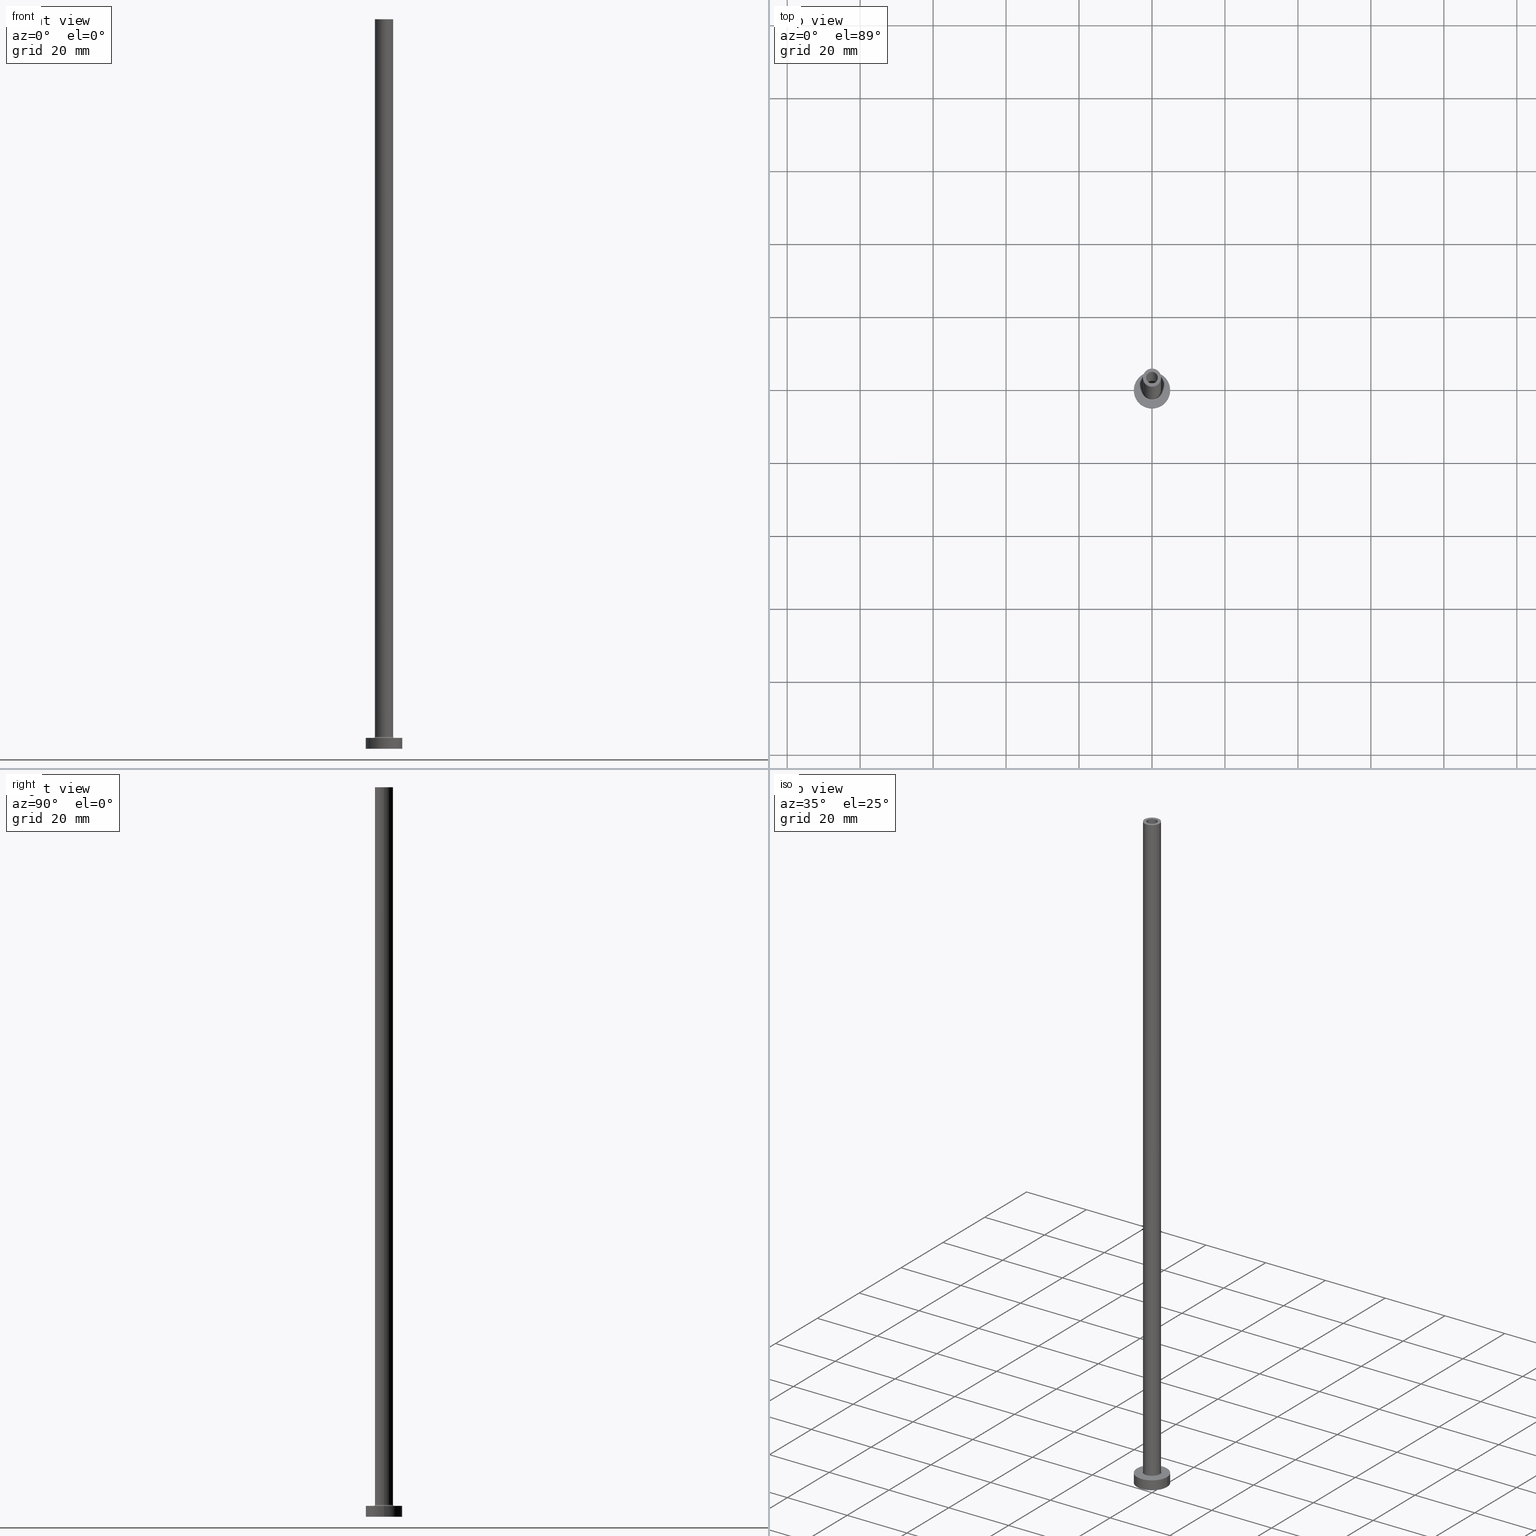
[diagram: canonical four-view strip — front | top / right | iso, engineering-drawing reading convention]
A machine part, canonical four-view strip (front | top / right | iso — engineering-drawing reading convention). The complete STEP part file that produces these views, byte-faithful:
ISO-10303-21;
HEADER;
FILE_DESCRIPTION (( 'STEP AP203' ),
    '1' );
FILE_NAME ('f123.STEP',
    '2023-02-13T17:56:43',
    ( '' ),
    ( '' ),
    'SwSTEP 2.0',
    'SolidWorks 2019',
    '' );
FILE_SCHEMA (( 'CONFIG_CONTROL_DESIGN' ));
ENDSEC;

DATA;
#1 = DIRECTION ( 'NONE',  ( -0.000000000000000000, -0.000000000000000000, -1.000000000000000000 ) ) ;
#2 = AXIS2_PLACEMENT_3D ( 'NONE', #81, #292, #219 ) ;
#3 = PLANE ( 'NONE',  #169 ) ;
#4 = CLOSED_SHELL ( 'NONE', ( #215, #133, #427, #342, #326, #454, #371, #419, #301, #244, #283, #117, #319, #413 ) ) ;
#5 = LINE ( 'NONE', #148, #246 ) ;
#6 = DIRECTION ( 'NONE',  ( 0.000000000000000000, 0.000000000000000000, 1.000000000000000000 ) ) ;
#7 = CARTESIAN_POINT ( 'NONE',  ( 0.000000000000000000, 0.000000000000000000, 0.000000000000000000 ) ) ;
#8 = EDGE_CURVE ( 'NONE', #39, #410, #274, .T. ) ;
#9 = AXIS2_PLACEMENT_3D ( 'NONE', #206, #415, #131 ) ;
#10 = PERSON_AND_ORGANIZATION ( #50, #55 ) ;
#11 = SECURITY_CLASSIFICATION ( '', '', #155 ) ;
#12 = FACE_OUTER_BOUND ( 'NONE', #412, .T. ) ;
#13 = ORIENTED_EDGE ( 'NONE', *, *, #250, .T. ) ;
#14 = COORDINATED_UNIVERSAL_TIME_OFFSET ( 1, 0, .AHEAD. ) ;
#15 = FACE_OUTER_BOUND ( 'NONE', #37, .T. ) ;
#16 = DIRECTION ( 'NONE',  ( 1.000000000000000000, 0.000000000000000000, 0.000000000000000000 ) ) ;
#17 = DIRECTION ( 'NONE',  ( 1.000000000000000000, 0.000000000000000000, 0.000000000000000000 ) ) ;
#18 = ORIENTED_EDGE ( 'NONE', *, *, #100, .T. ) ;
#19 = PERSON_AND_ORGANIZATION_ROLE ( 'design_supplier' ) ;
#20 = CARTESIAN_POINT ( 'NONE',  ( -5.000000000000000000, 0.000000000000000000, 3.000000000000000000 ) ) ;
#21 = CC_DESIGN_PERSON_AND_ORGANIZATION_ASSIGNMENT ( #440, #233, ( #425 ) ) ;
#22 = ORIENTED_EDGE ( 'NONE', *, *, #42, .F. ) ;
#23 = APPROVAL ( #56, 'NEUR�EN�' ) ;
#24 = ORIENTED_EDGE ( 'NONE', *, *, #78, .F. ) ;
#25 = LINE ( 'NONE', #354, #329 ) ;
#26 = DIRECTION ( 'NONE',  ( 1.000000000000000000, 0.000000000000000000, 0.000000000000000000 ) ) ;
#27 = APPLICATION_CONTEXT ( 'configuration controlled 3d designs of mechanical parts and assemblies' ) ;
#28 = DIRECTION ( 'NONE',  ( -0.000000000000000000, -0.000000000000000000, -1.000000000000000000 ) ) ;
#29 = CIRCLE ( 'NONE', #90, 1.600000000000000089 ) ;
#30 = CARTESIAN_POINT ( 'NONE',  ( -2.500000000000000000, 0.000000000000000000, 3.299999999999997158 ) ) ;
#31 = DIRECTION ( 'NONE',  ( 1.000000000000000000, 0.000000000000000000, 0.000000000000000000 ) ) ;
#32 = EDGE_CURVE ( 'NONE', #304, #39, #286, .T. ) ;
#33 = VERTEX_POINT ( 'NONE', #168 ) ;
#34 = DIRECTION ( 'NONE',  ( 0.000000000000000000, 0.000000000000000000, -1.000000000000000000 ) ) ;
#35 = DIRECTION ( 'NONE',  ( -0.000000000000000000, -0.000000000000000000, -1.000000000000000000 ) ) ;
#36 = VECTOR ( 'NONE', #330, 1000.000000000000000 ) ;
#37 = EDGE_LOOP ( 'NONE', ( #347, #151, #327, #99 ) ) ;
#38 = DIRECTION ( 'NONE',  ( 0.000000000000000000, 0.000000000000000000, 1.000000000000000000 ) ) ;
#39 = VERTEX_POINT ( 'NONE', #314 ) ;
#40 = FACE_OUTER_BOUND ( 'NONE', #154, .T. ) ;
#41 = ORIENTED_EDGE ( 'NONE', *, *, #164, .T. ) ;
#42 = EDGE_CURVE ( 'NONE', #179, #424, #331, .T. ) ;
#43 = CARTESIAN_POINT ( 'NONE',  ( 5.000000000000000000, 6.123233995736766282E-16, 3.000000000000000000 ) ) ;
#44 = CYLINDRICAL_SURFACE ( 'NONE', #174, 1.750000000000000000 ) ;
#45 = EDGE_LOOP ( 'NONE', ( #72, #338, #278, #370 ) ) ;
#46 = CIRCLE ( 'NONE', #136, 2.500000000000000000 ) ;
#47 = CARTESIAN_POINT ( 'NONE',  ( 2.799999999999999822, 0.000000000000000000, 2.999999999999998668 ) ) ;
#48 = CIRCLE ( 'NONE', #101, 1.750000000000000000 ) ;
#49 = DIRECTION ( 'NONE',  ( 0.000000000000000000, 0.000000000000000000, 1.000000000000000000 ) ) ;
#50 = PERSON ( 'NEUR�EN�', 'NEUR�EN�', 'NEUR�EN�', ('NEUR�EN�'), ('NEUR�EN�'), ('NEUR�EN�') ) ;
#51 = PERSON_AND_ORGANIZATION_ROLE ( 'creator' ) ;
#52 = DIRECTION ( 'NONE',  ( 0.000000000000000000, 0.000000000000000000, 1.000000000000000000 ) ) ;
#53 = APPROVAL ( #198, 'NEUR�EN�' ) ;
#54 = EDGE_LOOP ( 'NONE', ( #89, #249, #74, #24 ) ) ;
#55 = ORGANIZATION ( 'NEUR�EN�', 'NEUR�EN�', '' ) ;
#56 = APPROVAL_STATUS ( 'not_yet_approved' ) ;
#57 = AXIS2_PLACEMENT_3D ( 'NONE', #290, #160, #93 ) ;
#58 = EDGE_CURVE ( 'NONE', #139, #410, #296, .T. ) ;
#59 = COORDINATED_UNIVERSAL_TIME_OFFSET ( 1, 0, .AHEAD. ) ;
#60 = MECHANICAL_CONTEXT ( 'NONE', #361, 'mechanical' ) ;
#61 = DIRECTION ( 'NONE',  ( 0.000000000000000000, 0.000000000000000000, -1.000000000000000000 ) ) ;
#62 = ORIENTED_EDGE ( 'NONE', *, *, #84, .F. ) ;
#63 = COORDINATED_UNIVERSAL_TIME_OFFSET ( 1, 0, .AHEAD. ) ;
#64 = VECTOR ( 'NONE', #180, 1000.000000000000000 ) ;
#65 = PRODUCT_DEFINITION_FORMATION_WITH_SPECIFIED_SOURCE ( 'LIBOVOLN�', '', #425, .NOT_KNOWN. ) ;
#66 = ORIENTED_EDGE ( 'NONE', *, *, #232, .T. ) ;
#67 = CARTESIAN_POINT ( 'NONE',  ( 0.000000000000000000, 0.000000000000000000, 0.000000000000000000 ) ) ;
#68 = VERTEX_POINT ( 'NONE', #235 ) ;
#69 = AXIS2_PLACEMENT_3D ( 'NONE', #187, #61, #340 ) ;
#70 = EDGE_LOOP ( 'NONE', ( #184, #321 ) ) ;
#71 = DIRECTION ( 'NONE',  ( -1.000000000000000000, 0.000000000000000000, 0.000000000000000000 ) ) ;
#72 = ORIENTED_EDGE ( 'NONE', *, *, #294, .F. ) ;
#73 = DIRECTION ( 'NONE',  ( -1.000000000000000000, 0.000000000000000000, 0.000000000000000000 ) ) ;
#74 = ORIENTED_EDGE ( 'NONE', *, *, #181, .T. ) ;
#75 = CC_DESIGN_APPROVAL ( #150, ( #268 ) ) ;
#76 = FACE_OUTER_BOUND ( 'NONE', #70, .T. ) ;
#77 = FACE_OUTER_BOUND ( 'NONE', #102, .T. ) ;
#78 = EDGE_CURVE ( 'NONE', #280, #351, #348, .T. ) ;
#79 = CARTESIAN_POINT ( 'NONE',  ( 0.000000000000000000, 0.000000000000000000, 0.000000000000000000 ) ) ;
#80 = LINE ( 'NONE', #369, #36 ) ;
#81 = CARTESIAN_POINT ( 'NONE',  ( 0.000000000000000000, 0.000000000000000000, 3.000000000000000000 ) ) ;
#82 = CYLINDRICAL_SURFACE ( 'NONE', #405, 1.750000000000000000 ) ;
#83 = TOROIDAL_SURFACE ( 'NONE', #453, 2.799999999999999822, 0.2999999999999999889 ) ;
#84 = EDGE_CURVE ( 'NONE', #237, #178, #449, .T. ) ;
#85 = CALENDAR_DATE ( 2023, 13, 2 ) ;
#86 = CARTESIAN_POINT ( 'NONE',  ( 0.000000000000000000, 0.000000000000000000, 200.0000000000000000 ) ) ;
#87 = APPROVAL_DATE_TIME ( #308, #150 ) ;
#88 = CARTESIAN_POINT ( 'NONE',  ( 0.000000000000000000, 0.000000000000000000, 3.299999999999997158 ) ) ;
#89 = ORIENTED_EDGE ( 'NONE', *, *, #232, .F. ) ;
#90 = AXIS2_PLACEMENT_3D ( 'NONE', #311, #381, #17 ) ;
#91 = LOCAL_TIME ( 18, 56, 43.00000000000000000, #14 ) ;
#92 = DIRECTION ( 'NONE',  ( 0.000000000000000000, 0.000000000000000000, 1.000000000000000000 ) ) ;
#93 = DIRECTION ( 'NONE',  ( 0.000000000000000000, 0.000000000000000000, -1.000000000000000000 ) ) ;
#94 = CARTESIAN_POINT ( 'NONE',  ( 0.000000000000000000, 0.000000000000000000, 0.000000000000000000 ) ) ;
#95 = FACE_OUTER_BOUND ( 'NONE', #228, .T. ) ;
#96 = ORIENTED_EDGE ( 'NONE', *, *, #78, .T. ) ;
#97 = FACE_OUTER_BOUND ( 'NONE', #323, .T. ) ;
#98 = AXIS2_PLACEMENT_3D ( 'NONE', #67, #320, #247 ) ;
#99 = ORIENTED_EDGE ( 'NONE', *, *, #8, .F. ) ;
#100 = EDGE_CURVE ( 'NONE', #424, #179, #48, .T. ) ;
#101 = AXIS2_PLACEMENT_3D ( 'NONE', #435, #49, #295 ) ;
#102 = EDGE_LOOP ( 'NONE', ( #18, #426, #104, #190 ) ) ;
#103 = FACE_OUTER_BOUND ( 'NONE', #459, .T. ) ;
#104 = ORIENTED_EDGE ( 'NONE', *, *, #313, .T. ) ;
#105 = UNCERTAINTY_MEASURE_WITH_UNIT (LENGTH_MEASURE( 1.000000000000000082E-05 ), #460, 'distance_accuracy_value', 'NONE');
#106 = EDGE_LOOP ( 'NONE', ( #287, #450 ) ) ;
#107 = DIRECTION ( 'NONE',  ( 1.000000000000000000, 0.000000000000000000, 0.000000000000000000 ) ) ;
#108 = ORIENTED_EDGE ( 'NONE', *, *, #100, .F. ) ;
#109 =( NAMED_UNIT ( * ) PLANE_ANGLE_UNIT ( ) SI_UNIT ( $, .RADIAN. ) );
#110 = CIRCLE ( 'NONE', #183, 2.500000000000000000 ) ;
#111 = LOCAL_TIME ( 18, 56, 43.00000000000000000, #59 ) ;
#112 = EDGE_LOOP ( 'NONE', ( #222, #96 ) ) ;
#113 = CC_DESIGN_SECURITY_CLASSIFICATION ( #11, ( #65 ) ) ;
#114 = CARTESIAN_POINT ( 'NONE',  ( 0.000000000000000000, 0.000000000000000000, 3.000000000000000000 ) ) ;
#115 = ORIENTED_EDGE ( 'NONE', *, *, #358, .F. ) ;
#116 = DIRECTION ( 'NONE',  ( -1.000000000000000000, 0.000000000000000000, 0.000000000000000000 ) ) ;
#117 = ADVANCED_FACE ( 'NONE', ( #267 ), #82, .F. ) ;
#118 = CIRCLE ( 'NONE', #382, 2.799999999999999822 ) ;
#119 = LOCAL_TIME ( 18, 56, 43.00000000000000000, #63 ) ;
#120 = DATE_TIME_ROLE ( 'creation_date' ) ;
#121 = DIRECTION ( 'NONE',  ( 1.000000000000000000, 0.000000000000000000, 0.000000000000000000 ) ) ;
#122 = PERSON_AND_ORGANIZATION_ROLE ( 'classification_officer' ) ;
#123 = DIRECTION ( 'NONE',  ( 1.000000000000000000, 0.000000000000000000, 0.000000000000000000 ) ) ;
#124 = DATE_AND_TIME ( #336, #119 ) ;
#125 = EDGE_CURVE ( 'NONE', #255, #265, #138, .T. ) ;
#126 = AXIS2_PLACEMENT_3D ( 'NONE', #185, #332, #430 ) ;
#127 = DIRECTION ( 'NONE',  ( 0.000000000000000000, 0.000000000000000000, 1.000000000000000000 ) ) ;
#128 = DIRECTION ( 'NONE',  ( 0.000000000000000000, 0.000000000000000000, 1.000000000000000000 ) ) ;
#129 = ORIENTED_EDGE ( 'NONE', *, *, #388, .T. ) ;
#130 = CARTESIAN_POINT ( 'NONE',  ( 0.000000000000000000, 0.000000000000000000, 155.0000000000000284 ) ) ;
#131 = DIRECTION ( 'NONE',  ( -1.000000000000000000, 0.000000000000000000, 0.000000000000000000 ) ) ;
#132 = MANIFOLD_SOLID_BREP ( 'Odebrat vysunut�m4', #4 ) ;
#133 = ADVANCED_FACE ( 'NONE', ( #77 ), #44, .F. ) ;
#134 = CARTESIAN_POINT ( 'NONE',  ( 2.500000000000000000, 3.061616997868383141E-16, 200.0000000000000000 ) ) ;
#135 = DIRECTION ( 'NONE',  ( 1.000000000000000000, 0.000000000000000000, -0.000000000000000000 ) ) ;
#136 = AXIS2_PLACEMENT_3D ( 'NONE', #223, #157, #123 ) ;
#137 = ORIENTED_EDGE ( 'NONE', *, *, #388, .F. ) ;
#138 = CIRCLE ( 'NONE', #404, 1.600000000000000089 ) ;
#139 = VERTEX_POINT ( 'NONE', #291 ) ;
#140 = DIRECTION ( 'NONE',  ( 1.000000000000000000, 0.000000000000000000, 0.000000000000000000 ) ) ;
#141 = ORIENTED_EDGE ( 'NONE', *, *, #313, .F. ) ;
#142 = DIRECTION ( 'NONE',  ( 1.000000000000000000, 0.000000000000000000, 0.000000000000000000 ) ) ;
#143 = VERTEX_POINT ( 'NONE', #256 ) ;
#144 = CC_DESIGN_PERSON_AND_ORGANIZATION_ASSIGNMENT ( #162, #122, ( #11 ) ) ;
#145 = AXIS2_PLACEMENT_3D ( 'NONE', #203, #386, #389 ) ;
#146 = ORIENTED_EDGE ( 'NONE', *, *, #32, .T. ) ;
#147 = CARTESIAN_POINT ( 'NONE',  ( 0.000000000000000000, 0.000000000000000000, 3.000000000000000000 ) ) ;
#148 = CARTESIAN_POINT ( 'NONE',  ( -1.750000000000000000, 0.000000000000000000, 159.9497474683058726 ) ) ;
#149 = DIRECTION ( 'NONE',  ( 0.000000000000000000, 0.000000000000000000, 1.000000000000000000 ) ) ;
#150 = APPROVAL ( #271, 'NEUR�EN�' ) ;
#151 = ORIENTED_EDGE ( 'NONE', *, *, #285, .F. ) ;
#152 = APPROVAL_ROLE ( '' ) ;
#153 = DIRECTION ( 'NONE',  ( -0.000000000000000000, -0.000000000000000000, -1.000000000000000000 ) ) ;
#154 = EDGE_LOOP ( 'NONE', ( #172, #146, #137, #261 ) ) ;
#155 = SECURITY_CLASSIFICATION_LEVEL ( 'unclassified' ) ;
#156 = AXIS2_PLACEMENT_3D ( 'NONE', #452, #458, #140 ) ;
#157 = DIRECTION ( 'NONE',  ( 0.000000000000000000, 0.000000000000000000, 1.000000000000000000 ) ) ;
#158 = DATE_TIME_ROLE ( 'classification_date' ) ;
#159 = DATE_AND_TIME ( #339, #91 ) ;
#160 = DIRECTION ( 'NONE',  ( 0.000000000000000000, -1.000000000000000000, 0.000000000000000000 ) ) ;
#161 = AXIS2_PLACEMENT_3D ( 'NONE', #284, #357, #171 ) ;
#162 = PERSON_AND_ORGANIZATION ( #50, #55 ) ;
#163 = FACE_BOUND ( 'NONE', #391, .T. ) ;
#164 = EDGE_CURVE ( 'NONE', #362, #68, #205, .T. ) ;
#165 = ORIENTED_EDGE ( 'NONE', *, *, #409, .F. ) ;
#166 = EDGE_LOOP ( 'NONE', ( #129, #367 ) ) ;
#167 = CYLINDRICAL_SURFACE ( 'NONE', #9, 2.500000000000000000 ) ;
#168 = CARTESIAN_POINT ( 'NONE',  ( -5.000000000000000000, 0.000000000000000000, 0.000000000000000000 ) ) ;
#169 = AXIS2_PLACEMENT_3D ( 'NONE', #79, #6, #436 ) ;
#170 = DIRECTION ( 'NONE',  ( -0.000000000000000000, -0.000000000000000000, -1.000000000000000000 ) ) ;
#171 = DIRECTION ( 'NONE',  ( 1.000000000000000000, 0.000000000000000000, 0.000000000000000000 ) ) ;
#172 = ORIENTED_EDGE ( 'NONE', *, *, #204, .F. ) ;
#173 = FACE_OUTER_BOUND ( 'NONE', #210, .T. ) ;
#174 = AXIS2_PLACEMENT_3D ( 'NONE', #263, #176, #116 ) ;
#175 = DIRECTION ( 'NONE',  ( -1.000000000000000000, 1.224646799147353207E-16, 0.000000000000000000 ) ) ;
#176 = DIRECTION ( 'NONE',  ( 0.000000000000000000, 0.000000000000000000, -1.000000000000000000 ) ) ;
#177 = CC_DESIGN_PERSON_AND_ORGANIZATION_ASSIGNMENT ( #10, #51, ( #65 ) ) ;
#178 = VERTEX_POINT ( 'NONE', #214 ) ;
#179 = VERTEX_POINT ( 'NONE', #399 ) ;
#180 = DIRECTION ( 'NONE',  ( -0.000000000000000000, -0.000000000000000000, -1.000000000000000000 ) ) ;
#181 = EDGE_CURVE ( 'NONE', #265, #351, #80, .T. ) ;
#182 = CARTESIAN_POINT ( 'NONE',  ( 0.000000000000000000, 0.000000000000000000, 200.0000000000000000 ) ) ;
#183 = AXIS2_PLACEMENT_3D ( 'NONE', #375, #52, #379 ) ;
#184 = ORIENTED_EDGE ( 'NONE', *, *, #433, .T. ) ;
#185 = CARTESIAN_POINT ( 'NONE',  ( 0.000000000000000000, 0.000000000000000000, 200.0000000000000000 ) ) ;
#186 = PERSON_AND_ORGANIZATION ( #50, #55 ) ;
#187 = CARTESIAN_POINT ( 'NONE',  ( 0.000000000000000000, 0.000000000000000000, 200.0000000000000000 ) ) ;
#188 = AXIS2_PLACEMENT_3D ( 'NONE', #368, #364, #142 ) ;
#189 = EDGE_CURVE ( 'NONE', #424, #237, #5, .T. ) ;
#190 = ORIENTED_EDGE ( 'NONE', *, *, #189, .F. ) ;
#191 = APPROVAL_ROLE ( '' ) ;
#192 = SHAPE_DEFINITION_REPRESENTATION ( #360, #392 ) ;
#193 = CYLINDRICAL_SURFACE ( 'NONE', #69, 1.600000000000000089 ) ;
#194 = CALENDAR_DATE ( 2023, 13, 2 ) ;
#195 = EDGE_CURVE ( 'NONE', #231, #33, #414, .T. ) ;
#196 = DIRECTION ( 'NONE',  ( 0.000000000000000000, 0.000000000000000000, -1.000000000000000000 ) ) ;
#197 = VECTOR ( 'NONE', #196, 1000.000000000000000 ) ;
#198 = APPROVAL_STATUS ( 'not_yet_approved' ) ;
#199 = LINE ( 'NONE', #279, #197 ) ;
#200 = ORIENTED_EDGE ( 'NONE', *, *, #164, .F. ) ;
#201 = CYLINDRICAL_SURFACE ( 'NONE', #145, 2.500000000000000000 ) ;
#202 = EDGE_LOOP ( 'NONE', ( #165, #270, #344, #208 ) ) ;
#203 = CARTESIAN_POINT ( 'NONE',  ( 0.000000000000000000, 0.000000000000000000, 200.0000000000000000 ) ) ;
#204 = EDGE_CURVE ( 'NONE', #304, #139, #110, .T. ) ;
#205 = CIRCLE ( 'NONE', #238, 2.500000000000000000 ) ;
#206 = CARTESIAN_POINT ( 'NONE',  ( 0.000000000000000000, 0.000000000000000000, 200.0000000000000000 ) ) ;
#207 = CARTESIAN_POINT ( 'NONE',  ( 1.750000000000000000, 2.143131898507868297E-16, 159.9497474683058726 ) ) ;
#208 = ORIENTED_EDGE ( 'NONE', *, *, #195, .F. ) ;
#209 = CARTESIAN_POINT ( 'NONE',  ( 0.000000000000000000, 0.000000000000000000, 3.000000000000000000 ) ) ;
#210 = EDGE_LOOP ( 'NONE', ( #115, #394, #288, #242 ) ) ;
#211 = CIRCLE ( 'NONE', #417, 2.500000000000000000 ) ;
#212 = LOCAL_TIME ( 18, 56, 43.00000000000000000, #451 ) ;
#213 = CARTESIAN_POINT ( 'NONE',  ( 0.000000000000000000, 0.000000000000000000, 3.000000000000000000 ) ) ;
#214 = CARTESIAN_POINT ( 'NONE',  ( 1.750000000000000000, 2.143131898507868297E-16, 0.000000000000000000 ) ) ;
#215 = ADVANCED_FACE ( 'NONE', ( #95 ), #193, .F. ) ;
#216 = ORIENTED_EDGE ( 'NONE', *, *, #181, .F. ) ;
#217 = DIRECTION ( 'NONE',  ( 0.000000000000000000, 0.000000000000000000, 1.000000000000000000 ) ) ;
#218 = DIRECTION ( 'NONE',  ( -1.000000000000000000, 0.000000000000000000, 0.000000000000000000 ) ) ;
#219 = DIRECTION ( 'NONE',  ( 1.000000000000000000, 0.000000000000000000, 0.000000000000000000 ) ) ;
#220 = AXIS2_PLACEMENT_3D ( 'NONE', #423, #28, #71 ) ;
#221 = FACE_BOUND ( 'NONE', #443, .T. ) ;
#222 = ORIENTED_EDGE ( 'NONE', *, *, #441, .T. ) ;
#223 = CARTESIAN_POINT ( 'NONE',  ( 0.000000000000000000, 0.000000000000000000, 200.0000000000000000 ) ) ;
#224 = PERSON_AND_ORGANIZATION ( #50, #55 ) ;
#225 = CARTESIAN_POINT ( 'NONE',  ( 0.000000000000000000, 0.000000000000000000, 3.299999999999997158 ) ) ;
#226 = CC_DESIGN_PERSON_AND_ORGANIZATION_ASSIGNMENT ( #186, #19, ( #65 ) ) ;
#227 = APPROVAL_PERSON_ORGANIZATION ( #438, #150, #406 ) ;
#228 = EDGE_LOOP ( 'NONE', ( #13, #66, #306, #216 ) ) ;
#229 = CALENDAR_DATE ( 2023, 13, 2 ) ;
#230 = PLANE ( 'NONE',  #446 ) ;
#231 = VERTEX_POINT ( 'NONE', #20 ) ;
#232 = EDGE_CURVE ( 'NONE', #255, #280, #199, .T. ) ;
#233 = PERSON_AND_ORGANIZATION_ROLE ( 'design_owner' ) ;
#234 = DIRECTION ( 'NONE',  ( -0.000000000000000000, -0.000000000000000000, -1.000000000000000000 ) ) ;
#235 = CARTESIAN_POINT ( 'NONE',  ( -2.500000000000000000, 0.000000000000000000, 200.0000000000000000 ) ) ;
#236 = CC_DESIGN_PERSON_AND_ORGANIZATION_ASSIGNMENT ( #349, #380, ( #268 ) ) ;
#237 = VERTEX_POINT ( 'NONE', #269 ) ;
#238 = AXIS2_PLACEMENT_3D ( 'NONE', #182, #397, #402 ) ;
#239 = APPROVAL_PERSON_ORGANIZATION ( #224, #53, #152 ) ;
#240 = PRODUCT_RELATED_PRODUCT_CATEGORY ( 'detail', '', ( #425 ) ) ;
#241 = FACE_OUTER_BOUND ( 'NONE', #202, .T. ) ;
#242 = ORIENTED_EDGE ( 'NONE', *, *, #204, .T. ) ;
#243 = CARTESIAN_POINT ( 'NONE',  ( 0.000000000000000000, 0.000000000000000000, 0.000000000000000000 ) ) ;
#244 = ADVANCED_FACE ( 'NONE', ( #163, #12 ), #230, .T. ) ;
#245 = LINE ( 'NONE', #207, #439 ) ;
#246 = VECTOR ( 'NONE', #298, 1000.000000000000000 ) ;
#247 = DIRECTION ( 'NONE',  ( 1.000000000000000000, 0.000000000000000000, 0.000000000000000000 ) ) ;
#248 = CC_DESIGN_APPROVAL ( #23, ( #11 ) ) ;
#249 = ORIENTED_EDGE ( 'NONE', *, *, #125, .T. ) ;
#250 = EDGE_CURVE ( 'NONE', #265, #255, #29, .T. ) ;
#251 = CYLINDRICAL_SURFACE ( 'NONE', #220, 5.000000000000000000 ) ;
#252 = ORIENTED_EDGE ( 'NONE', *, *, #250, .F. ) ;
#253 = FACE_OUTER_BOUND ( 'NONE', #353, .T. ) ;
#254 = ORIENTED_EDGE ( 'NONE', *, *, #350, .F. ) ;
#255 = VERTEX_POINT ( 'NONE', #276 ) ;
#256 = CARTESIAN_POINT ( 'NONE',  ( 5.000000000000000000, 6.123233995736766282E-16, 0.000000000000000000 ) ) ;
#257 = FACE_OUTER_BOUND ( 'NONE', #106, .T. ) ;
#258 = EDGE_CURVE ( 'NONE', #68, #362, #46, .T. ) ;
#259 = PLANE ( 'NONE',  #346 ) ;
#260 = DIRECTION ( 'NONE',  ( 1.000000000000000000, 0.000000000000000000, 0.000000000000000000 ) ) ;
#261 = ORIENTED_EDGE ( 'NONE', *, *, #58, .F. ) ;
#262 = DIRECTION ( 'NONE',  ( 1.000000000000000000, 0.000000000000000000, -0.000000000000000000 ) ) ;
#263 = CARTESIAN_POINT ( 'NONE',  ( 0.000000000000000000, 0.000000000000000000, 159.9497474683058726 ) ) ;
#264 = AXIS2_PLACEMENT_3D ( 'NONE', #299, #217, #428 ) ;
#265 = VERTEX_POINT ( 'NONE', #305 ) ;
#266 =( NAMED_UNIT ( * ) SI_UNIT ( $, .STERADIAN. ) SOLID_ANGLE_UNIT ( ) );
#267 = FACE_OUTER_BOUND ( 'NONE', #45, .T. ) ;
#268 = PRODUCT_DEFINITION ( 'NEZN�M�', '', #65, #408 ) ;
#269 = CARTESIAN_POINT ( 'NONE',  ( -1.750000000000000000, 0.000000000000000000, 0.000000000000000000 ) ) ;
#270 = ORIENTED_EDGE ( 'NONE', *, *, #448, .T. ) ;
#271 = APPROVAL_STATUS ( 'not_yet_approved' ) ;
#272 = DIRECTION ( 'NONE',  ( 1.000000000000000000, 0.000000000000000000, 0.000000000000000000 ) ) ;
#273 = LOCAL_TIME ( 18, 56, 43.00000000000000000, #378 ) ;
#274 = CIRCLE ( 'NONE', #377, 2.799999999999999822 ) ;
#275 = APPLICATION_PROTOCOL_DEFINITION ( 'international standard', 'config_control_design', 1994, #361 ) ;
#276 = CARTESIAN_POINT ( 'NONE',  ( 1.600000000000000089, 1.959434878635764737E-16, 200.0000000000000000 ) ) ;
#277 = DIRECTION ( 'NONE',  ( 1.224646799147353207E-16, 1.000000000000000000, -0.000000000000000000 ) ) ;
#278 = ORIENTED_EDGE ( 'NONE', *, *, #189, .T. ) ;
#279 = CARTESIAN_POINT ( 'NONE',  ( 1.600000000000000089, 1.959434878635764737E-16, 200.0000000000000000 ) ) ;
#280 = VERTEX_POINT ( 'NONE', #442 ) ;
#281 = AXIS2_PLACEMENT_3D ( 'NONE', #147, #434, #73 ) ;
#282 = TOROIDAL_SURFACE ( 'NONE', #188, 2.799999999999999822, 0.2999999999999999889 ) ;
#283 = ADVANCED_FACE ( 'NONE', ( #15 ), #83, .F. ) ;
#284 = CARTESIAN_POINT ( 'NONE',  ( 0.000000000000000000, 0.000000000000000000, 0.000000000000000000 ) ) ;
#285 = EDGE_CURVE ( 'NONE', #139, #304, #211, .T. ) ;
#286 = CIRCLE ( 'NONE', #431, 0.2999999999999999334 ) ;
#287 = ORIENTED_EDGE ( 'NONE', *, *, #333, .F. ) ;
#288 = ORIENTED_EDGE ( 'NONE', *, *, #350, .T. ) ;
#289 = CARTESIAN_POINT ( 'NONE',  ( 2.500000000000000000, 3.061616997868383141E-16, 200.0000000000000000 ) ) ;
#290 = CARTESIAN_POINT ( 'NONE',  ( 2.799999999999999822, 0.000000000000000000, 3.299999999999997158 ) ) ;
#291 = CARTESIAN_POINT ( 'NONE',  ( 2.500000000000000000, 3.061616997868383141E-16, 3.299999999999997158 ) ) ;
#292 = DIRECTION ( 'NONE',  ( 0.000000000000000000, 0.000000000000000000, 1.000000000000000000 ) ) ;
#293 = VECTOR ( 'NONE', #234, 1000.000000000000000 ) ;
#294 = EDGE_CURVE ( 'NONE', #179, #178, #245, .T. ) ;
#295 = DIRECTION ( 'NONE',  ( 1.000000000000000000, 0.000000000000000000, 0.000000000000000000 ) ) ;
#296 = CIRCLE ( 'NONE', #57, 0.2999999999999999334 ) ;
#297 = CARTESIAN_POINT ( 'NONE',  ( 5.000000000000000000, 6.123233995736766282E-16, 3.000000000000000000 ) ) ;
#298 = DIRECTION ( 'NONE',  ( 0.000000000000000000, 0.000000000000000000, -1.000000000000000000 ) ) ;
#299 = CARTESIAN_POINT ( 'NONE',  ( 0.000000000000000000, 0.000000000000000000, 3.000000000000000000 ) ) ;
#300 = DIRECTION ( 'NONE',  ( 0.000000000000000000, 0.000000000000000000, -1.000000000000000000 ) ) ;
#301 = ADVANCED_FACE ( 'NONE', ( #173 ), #167, .T. ) ;
#302 = AXIS2_PLACEMENT_3D ( 'NONE', #243, #352, #31 ) ;
#303 = CC_DESIGN_APPROVAL ( #53, ( #65 ) ) ;
#304 = VERTEX_POINT ( 'NONE', #30 ) ;
#305 = CARTESIAN_POINT ( 'NONE',  ( -1.600000000000000089, 0.000000000000000000, 200.0000000000000000 ) ) ;
#306 = ORIENTED_EDGE ( 'NONE', *, *, #441, .F. ) ;
#307 = APPROVAL_DATE_TIME ( #159, #23 ) ;
#308 = DATE_AND_TIME ( #194, #273 ) ;
#309 = CIRCLE ( 'NONE', #161, 5.000000000000000000 ) ;
#310 = APPLICATION_PROTOCOL_DEFINITION ( 'international standard', 'config_control_design', 1994, #27 ) ;
#311 = CARTESIAN_POINT ( 'NONE',  ( 0.000000000000000000, 0.000000000000000000, 200.0000000000000000 ) ) ;
#312 = CARTESIAN_POINT ( 'NONE',  ( -2.799999999999999822, 3.429011037612588783E-16, 3.299999999999997158 ) ) ;
#313 = EDGE_CURVE ( 'NONE', #178, #237, #355, .T. ) ;
#314 = CARTESIAN_POINT ( 'NONE',  ( -2.799999999999999822, 3.429011037612589276E-16, 2.999999999999998668 ) ) ;
#315 = VECTOR ( 'NONE', #328, 1000.000000000000000 ) ;
#316 = AXIS2_PLACEMENT_3D ( 'NONE', #130, #383, #121 ) ;
#317 = CARTESIAN_POINT ( 'NONE',  ( -1.600000000000000089, 0.000000000000000000, 155.0000000000000284 ) ) ;
#318 = LINE ( 'NONE', #134, #315 ) ;
#319 = ADVANCED_FACE ( 'NONE', ( #390, #97 ), #420, .F. ) ;
#320 = DIRECTION ( 'NONE',  ( 0.000000000000000000, 0.000000000000000000, 1.000000000000000000 ) ) ;
#321 = ORIENTED_EDGE ( 'NONE', *, *, #409, .T. ) ;
#322 = DIRECTION ( 'NONE',  ( 1.000000000000000000, 0.000000000000000000, 0.000000000000000000 ) ) ;
#323 = EDGE_LOOP ( 'NONE', ( #108, #22 ) ) ;
#324 = DIRECTION ( 'NONE',  ( 0.000000000000000000, 0.000000000000000000, 1.000000000000000000 ) ) ;
#325 = ORIENTED_EDGE ( 'NONE', *, *, #285, .T. ) ;
#326 = ADVANCED_FACE ( 'NONE', ( #241 ), #251, .T. ) ;
#327 = ORIENTED_EDGE ( 'NONE', *, *, #58, .T. ) ;
#328 = DIRECTION ( 'NONE',  ( -0.000000000000000000, -0.000000000000000000, -1.000000000000000000 ) ) ;
#329 = VECTOR ( 'NONE', #170, 1000.000000000000000 ) ;
#330 = DIRECTION ( 'NONE',  ( 0.000000000000000000, 0.000000000000000000, -1.000000000000000000 ) ) ;
#331 = CIRCLE ( 'NONE', #156, 1.750000000000000000 ) ;
#332 = DIRECTION ( 'NONE',  ( 0.000000000000000000, 0.000000000000000000, -1.000000000000000000 ) ) ;
#333 = EDGE_CURVE ( 'NONE', #33, #143, #456, .T. ) ;
#334 = CARTESIAN_POINT ( 'NONE',  ( 0.000000000000000000, 0.000000000000000000, 155.0000000000000284 ) ) ;
#335 = CC_DESIGN_DATE_AND_TIME_ASSIGNMENT ( #124, #120, ( #268 ) ) ;
#336 = CALENDAR_DATE ( 2023, 13, 2 ) ;
#337 =( GEOMETRIC_REPRESENTATION_CONTEXT ( 3 ) GLOBAL_UNCERTAINTY_ASSIGNED_CONTEXT ( ( #105 ) ) GLOBAL_UNIT_ASSIGNED_CONTEXT ( ( #460, #109, #266 ) ) REPRESENTATION_CONTEXT ( 'NONE', 'WORKASPACE' ) );
#338 = ORIENTED_EDGE ( 'NONE', *, *, #42, .T. ) ;
#339 = CALENDAR_DATE ( 2023, 13, 2 ) ;
#340 = DIRECTION ( 'NONE',  ( -1.000000000000000000, 0.000000000000000000, 0.000000000000000000 ) ) ;
#341 = DATE_AND_TIME ( #229, #212 ) ;
#342 = ADVANCED_FACE ( 'NONE', ( #103 ), #201, .T. ) ;
#343 = DIRECTION ( 'NONE',  ( 1.000000000000000000, 0.000000000000000000, -0.000000000000000000 ) ) ;
#344 = ORIENTED_EDGE ( 'NONE', *, *, #356, .T. ) ;
#345 = APPROVAL_DATE_TIME ( #374, #53 ) ;
#346 = AXIS2_PLACEMENT_3D ( 'NONE', #213, #149, #262 ) ;
#347 = ORIENTED_EDGE ( 'NONE', *, *, #32, .F. ) ;
#348 = CIRCLE ( 'NONE', #316, 1.600000000000000089 ) ;
#349 = PERSON_AND_ORGANIZATION ( #50, #55 ) ;
#350 = EDGE_CURVE ( 'NONE', #68, #304, #25, .T. ) ;
#351 = VERTEX_POINT ( 'NONE', #317 ) ;
#352 = DIRECTION ( 'NONE',  ( -0.000000000000000000, -0.000000000000000000, -1.000000000000000000 ) ) ;
#353 = EDGE_LOOP ( 'NONE', ( #418, #461, #455, #457 ) ) ;
#354 = CARTESIAN_POINT ( 'NONE',  ( -2.500000000000000000, 0.000000000000000000, 200.0000000000000000 ) ) ;
#355 = CIRCLE ( 'NONE', #302, 1.750000000000000000 ) ;
#356 = EDGE_CURVE ( 'NONE', #143, #33, #309, .T. ) ;
#357 = DIRECTION ( 'NONE',  ( 0.000000000000000000, 0.000000000000000000, 1.000000000000000000 ) ) ;
#358 = EDGE_CURVE ( 'NONE', #362, #139, #318, .T. ) ;
#359 = DIRECTION ( 'NONE',  ( 0.000000000000000000, 0.000000000000000000, 1.000000000000000000 ) ) ;
#360 = PRODUCT_DEFINITION_SHAPE ( 'NONE', 'NONE',  #268 ) ;
#361 = APPLICATION_CONTEXT ( 'configuration controlled 3d designs of mechanical parts and assemblies' ) ;
#362 = VERTEX_POINT ( 'NONE', #289 ) ;
#363 = CIRCLE ( 'NONE', #264, 5.000000000000000000 ) ;
#364 = DIRECTION ( 'NONE',  ( 0.000000000000000000, 0.000000000000000000, 1.000000000000000000 ) ) ;
#365 = ORIENTED_EDGE ( 'NONE', *, *, #258, .T. ) ;
#366 = FACE_OUTER_BOUND ( 'NONE', #54, .T. ) ;
#367 = ORIENTED_EDGE ( 'NONE', *, *, #8, .T. ) ;
#368 = CARTESIAN_POINT ( 'NONE',  ( 0.000000000000000000, 0.000000000000000000, 3.299999999999997158 ) ) ;
#369 = CARTESIAN_POINT ( 'NONE',  ( -1.600000000000000089, 0.000000000000000000, 200.0000000000000000 ) ) ;
#370 = ORIENTED_EDGE ( 'NONE', *, *, #84, .T. ) ;
#371 = ADVANCED_FACE ( 'NONE', ( #396, #76 ), #259, .T. ) ;
#372 = AXIS2_PLACEMENT_3D ( 'NONE', #384, #359, #135 ) ;
#373 = CARTESIAN_POINT ( 'NONE',  ( -1.750000000000000000, 0.000000000000000000, 155.0000000000000284 ) ) ;
#374 = DATE_AND_TIME ( #85, #111 ) ;
#375 = CARTESIAN_POINT ( 'NONE',  ( 0.000000000000000000, 0.000000000000000000, 3.299999999999997158 ) ) ;
#376 = PERSON_AND_ORGANIZATION ( #50, #55 ) ;
#377 = AXIS2_PLACEMENT_3D ( 'NONE', #209, #35, #26 ) ;
#378 = COORDINATED_UNIVERSAL_TIME_OFFSET ( 1, 0, .AHEAD. ) ;
#379 = DIRECTION ( 'NONE',  ( 1.000000000000000000, 0.000000000000000000, 0.000000000000000000 ) ) ;
#380 = PERSON_AND_ORGANIZATION_ROLE ( 'creator' ) ;
#381 = DIRECTION ( 'NONE',  ( 0.000000000000000000, 0.000000000000000000, 1.000000000000000000 ) ) ;
#382 = AXIS2_PLACEMENT_3D ( 'NONE', #114, #1, #403 ) ;
#383 = DIRECTION ( 'NONE',  ( 0.000000000000000000, 0.000000000000000000, 1.000000000000000000 ) ) ;
#384 = CARTESIAN_POINT ( 'NONE',  ( 0.000000000000000000, 0.000000000000000000, 155.0000000000000284 ) ) ;
#385 = ORIENTED_EDGE ( 'NONE', *, *, #125, .F. ) ;
#386 = DIRECTION ( 'NONE',  ( -0.000000000000000000, -0.000000000000000000, -1.000000000000000000 ) ) ;
#387 = CC_DESIGN_DATE_AND_TIME_ASSIGNMENT ( #341, #158, ( #11 ) ) ;
#388 = EDGE_CURVE ( 'NONE', #410, #39, #118, .T. ) ;
#389 = DIRECTION ( 'NONE',  ( -1.000000000000000000, 0.000000000000000000, 0.000000000000000000 ) ) ;
#390 = FACE_BOUND ( 'NONE', #112, .T. ) ;
#391 = EDGE_LOOP ( 'NONE', ( #252, #385 ) ) ;
#392 = ADVANCED_BREP_SHAPE_REPRESENTATION ( 'f123', ( #132, #395 ), #337 ) ;
#393 = CYLINDRICAL_SURFACE ( 'NONE', #281, 5.000000000000000000 ) ;
#394 = ORIENTED_EDGE ( 'NONE', *, *, #258, .F. ) ;
#395 = AXIS2_PLACEMENT_3D ( 'NONE', #94, #127, #16 ) ;
#396 = FACE_BOUND ( 'NONE', #166, .T. ) ;
#397 = DIRECTION ( 'NONE',  ( 0.000000000000000000, 0.000000000000000000, 1.000000000000000000 ) ) ;
#398 = CYLINDRICAL_SURFACE ( 'NONE', #126, 1.600000000000000089 ) ;
#399 = CARTESIAN_POINT ( 'NONE',  ( 1.750000000000000000, 2.143131898507868297E-16, 155.0000000000000284 ) ) ;
#400 = ORIENTED_EDGE ( 'NONE', *, *, #358, .T. ) ;
#401 = LINE ( 'NONE', #43, #64 ) ;
#402 = DIRECTION ( 'NONE',  ( 1.000000000000000000, 0.000000000000000000, 0.000000000000000000 ) ) ;
#403 = DIRECTION ( 'NONE',  ( 1.000000000000000000, 0.000000000000000000, 0.000000000000000000 ) ) ;
#404 = AXIS2_PLACEMENT_3D ( 'NONE', #407, #38, #437 ) ;
#405 = AXIS2_PLACEMENT_3D ( 'NONE', #432, #300, #218 ) ;
#406 = APPROVAL_ROLE ( '' ) ;
#407 = CARTESIAN_POINT ( 'NONE',  ( 0.000000000000000000, 0.000000000000000000, 200.0000000000000000 ) ) ;
#408 = DESIGN_CONTEXT ( 'detailed design', #27, 'design' ) ;
#409 = EDGE_CURVE ( 'NONE', #422, #231, #411, .T. ) ;
#410 = VERTEX_POINT ( 'NONE', #47 ) ;
#411 = CIRCLE ( 'NONE', #2, 5.000000000000000000 ) ;
#412 = EDGE_LOOP ( 'NONE', ( #365, #41 ) ) ;
#413 = ADVANCED_FACE ( 'NONE', ( #366 ), #398, .F. ) ;
#414 = LINE ( 'NONE', #445, #293 ) ;
#415 = DIRECTION ( 'NONE',  ( -0.000000000000000000, -0.000000000000000000, -1.000000000000000000 ) ) ;
#416 = AXIS2_PLACEMENT_3D ( 'NONE', #7, #153, #260 ) ;
#417 = AXIS2_PLACEMENT_3D ( 'NONE', #88, #92, #322 ) ;
#418 = ORIENTED_EDGE ( 'NONE', *, *, #448, .F. ) ;
#419 = ADVANCED_FACE ( 'NONE', ( #221, #257 ), #3, .F. ) ;
#420 = PLANE ( 'NONE',  #372 ) ;
#421 = CIRCLE ( 'NONE', #429, 1.600000000000000089 ) ;
#422 = VERTEX_POINT ( 'NONE', #297 ) ;
#423 = CARTESIAN_POINT ( 'NONE',  ( 0.000000000000000000, 0.000000000000000000, 3.000000000000000000 ) ) ;
#424 = VERTEX_POINT ( 'NONE', #373 ) ;
#425 = PRODUCT ( 'f123', 'f123', '', ( #60 ) ) ;
#426 = ORIENTED_EDGE ( 'NONE', *, *, #294, .T. ) ;
#427 = ADVANCED_FACE ( 'NONE', ( #40 ), #282, .F. ) ;
#428 = DIRECTION ( 'NONE',  ( 1.000000000000000000, 0.000000000000000000, 0.000000000000000000 ) ) ;
#429 = AXIS2_PLACEMENT_3D ( 'NONE', #334, #324, #107 ) ;
#430 = DIRECTION ( 'NONE',  ( -1.000000000000000000, 0.000000000000000000, 0.000000000000000000 ) ) ;
#431 = AXIS2_PLACEMENT_3D ( 'NONE', #312, #277, #175 ) ;
#432 = CARTESIAN_POINT ( 'NONE',  ( 0.000000000000000000, 0.000000000000000000, 159.9497474683058726 ) ) ;
#433 = EDGE_CURVE ( 'NONE', #231, #422, #363, .T. ) ;
#434 = DIRECTION ( 'NONE',  ( -0.000000000000000000, -0.000000000000000000, -1.000000000000000000 ) ) ;
#435 = CARTESIAN_POINT ( 'NONE',  ( 0.000000000000000000, 0.000000000000000000, 155.0000000000000284 ) ) ;
#436 = DIRECTION ( 'NONE',  ( 1.000000000000000000, 0.000000000000000000, -0.000000000000000000 ) ) ;
#437 = DIRECTION ( 'NONE',  ( 1.000000000000000000, 0.000000000000000000, 0.000000000000000000 ) ) ;
#438 = PERSON_AND_ORGANIZATION ( #50, #55 ) ;
#439 = VECTOR ( 'NONE', #34, 1000.000000000000000 ) ;
#440 = PERSON_AND_ORGANIZATION ( #50, #55 ) ;
#441 = EDGE_CURVE ( 'NONE', #351, #280, #421, .T. ) ;
#442 = CARTESIAN_POINT ( 'NONE',  ( 1.600000000000000089, 1.959434878635764737E-16, 155.0000000000000284 ) ) ;
#443 = EDGE_LOOP ( 'NONE', ( #62, #141 ) ) ;
#444 = DIRECTION ( 'NONE',  ( 0.000000000000000000, 0.000000000000000000, 1.000000000000000000 ) ) ;
#445 = CARTESIAN_POINT ( 'NONE',  ( -5.000000000000000000, 0.000000000000000000, 3.000000000000000000 ) ) ;
#446 = AXIS2_PLACEMENT_3D ( 'NONE', #86, #128, #343 ) ;
#447 = APPROVAL_PERSON_ORGANIZATION ( #376, #23, #191 ) ;
#448 = EDGE_CURVE ( 'NONE', #422, #143, #401, .T. ) ;
#449 = CIRCLE ( 'NONE', #416, 1.750000000000000000 ) ;
#450 = ORIENTED_EDGE ( 'NONE', *, *, #356, .F. ) ;
#451 = COORDINATED_UNIVERSAL_TIME_OFFSET ( 1, 0, .AHEAD. ) ;
#452 = CARTESIAN_POINT ( 'NONE',  ( 0.000000000000000000, 0.000000000000000000, 155.0000000000000284 ) ) ;
#453 = AXIS2_PLACEMENT_3D ( 'NONE', #225, #444, #272 ) ;
#454 = ADVANCED_FACE ( 'NONE', ( #253 ), #393, .T. ) ;
#455 = ORIENTED_EDGE ( 'NONE', *, *, #195, .T. ) ;
#456 = CIRCLE ( 'NONE', #98, 5.000000000000000000 ) ;
#457 = ORIENTED_EDGE ( 'NONE', *, *, #333, .T. ) ;
#458 = DIRECTION ( 'NONE',  ( 0.000000000000000000, 0.000000000000000000, 1.000000000000000000 ) ) ;
#459 = EDGE_LOOP ( 'NONE', ( #200, #400, #325, #254 ) ) ;
#460 =( LENGTH_UNIT ( ) NAMED_UNIT ( * ) SI_UNIT ( .MILLI., .METRE. ) );
#461 = ORIENTED_EDGE ( 'NONE', *, *, #433, .F. ) ;
ENDSEC;
END-ISO-10303-21;
